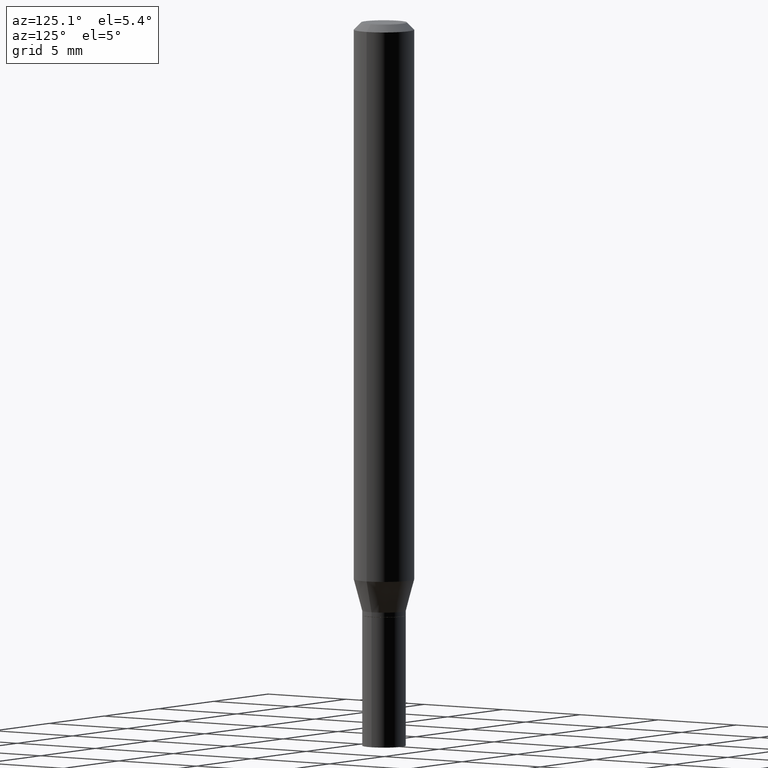
[diagram: clean part render]
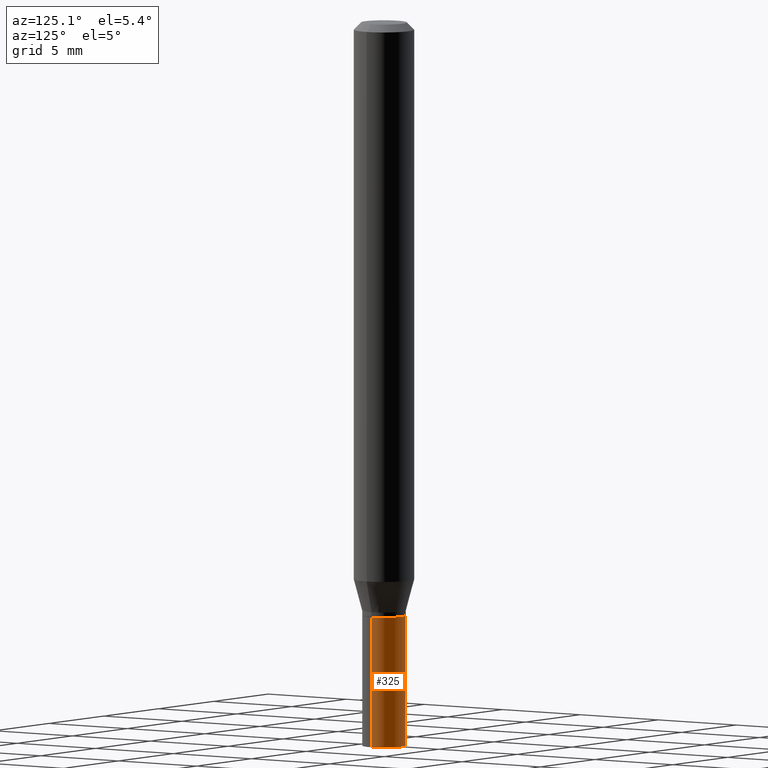
[diagram: same view with one face highlighted and labeled with its STEP entity id]
A machine part, auxiliary view. The second image highlights one B-rep face of the part: STEP entity #325.
In plain terms, the highlighted cylindrical surface (edge-blend (fillet) strip) has radius 1.143 mm, axis along (-0, 0, 1).
Its self-contained STEP definition (entity closure, byte-faithful):
#4 = DIRECTION ( 'NONE',  ( 1.000000000000000000, -6.982962677686269077E-15, 0.000000000000000000 ) ) ;
#5 = EDGE_CURVE ( 'NONE', #339, #103, #352, .T. ) ;
#25 = ORIENTED_EDGE ( 'NONE', *, *, #143, .T. ) ;
#27 = CARTESIAN_POINT ( 'NONE',  ( 0.04499999999999999833, -5.551455328760600652E-15, -1.500000000000000222 ) ) ;
#42 = CARTESIAN_POINT ( 'NONE',  ( -0.04499999999999999833, -4.446127796428848702E-15, -1.500000000000000222 ) ) ;
#84 = DIRECTION ( 'NONE',  ( -2.445468806185136877E-29, 3.491481338843145188E-15, 1.000000000000000000 ) ) ;
#87 = CARTESIAN_POINT ( 'NONE',  ( 0.04499999999999999833, -3.142333204958819823E-16, 2.194279549108170967E-30 ) ) ;
#92 = DIRECTION ( 'NONE',  ( 1.000000000000000000, -6.982962677686266711E-15, 4.876176775795935793E-29 ) ) ;
#103 = VERTEX_POINT ( 'NONE', #42 ) ;
#113 = CARTESIAN_POINT ( 'NONE',  ( 3.668203209277704895E-29, -5.237222008264718177E-15, -1.500000000000000222 ) ) ;
#136 = ORIENTED_EDGE ( 'NONE', *, *, #5, .T. ) ;
#143 = EDGE_CURVE ( 'NONE', #103, #245, #362, .T. ) ;
#181 = VECTOR ( 'NONE', #84, 39.37007874015748143 ) ;
#190 = CARTESIAN_POINT ( 'NONE',  ( 0.000000000000000000, 0.000000000000000000, 0.000000000000000000 ) ) ;
#207 = ORIENTED_EDGE ( 'NONE', *, *, #387, .F. ) ;
#208 = DIRECTION ( 'NONE',  ( 1.000000000000000000, -6.982962677686269077E-15, 0.000000000000000000 ) ) ;
#210 = CIRCLE ( 'NONE', #354, 0.04499999999999999833 ) ;
#232 = AXIS2_PLACEMENT_3D ( 'NONE', #113, #358, #4 ) ;
#233 = EDGE_CURVE ( 'NONE', #339, #266, #290, .T. ) ;
#245 = VERTEX_POINT ( 'NONE', #367 ) ;
#249 = VECTOR ( 'NONE', #335, 39.37007874015748143 ) ;
#256 = CARTESIAN_POINT ( 'NONE',  ( -0.04499999999999999833, 3.197442310920450718E-16, -2.213520790614707560E-30 ) ) ;
#258 = CARTESIAN_POINT ( 'NONE',  ( 0.04499999999999999833, -4.608755367272951648E-15, -1.230000000000000204 ) ) ;
#263 = FACE_OUTER_BOUND ( 'NONE', #408, .T. ) ;
#266 = VERTEX_POINT ( 'NONE', #258 ) ;
#290 = LINE ( 'NONE', #87, #249 ) ;
#325 = ADVANCED_FACE ( 'NONE', ( #263 ), #412, .T. ) ;
#335 = DIRECTION ( 'NONE',  ( -2.445468806185136877E-29, 3.491481338843145188E-15, 1.000000000000000000 ) ) ;
#339 = VERTEX_POINT ( 'NONE', #27 ) ;
#352 = CIRCLE ( 'NONE', #232, 0.04499999999999999833 ) ;
#354 = AXIS2_PLACEMENT_3D ( 'NONE', #380, #378, #208 ) ;
#358 = DIRECTION ( 'NONE',  ( -2.445468806185136597E-29, 3.491481338843145583E-15, 1.000000000000000000 ) ) ;
#362 = LINE ( 'NONE', #256, #181 ) ;
#367 = CARTESIAN_POINT ( 'NONE',  ( -0.04499999999999999833, -4.446127796428848702E-15, -1.230000000000000204 ) ) ;
#378 = DIRECTION ( 'NONE',  ( -2.445468806185136597E-29, 3.491481338843145583E-15, 1.000000000000000000 ) ) ;
#380 = CARTESIAN_POINT ( 'NONE',  ( 3.007926631607718216E-29, -4.294522046777069173E-15, -1.230000000000000204 ) ) ;
#381 = ORIENTED_EDGE ( 'NONE', *, *, #233, .F. ) ;
#387 = EDGE_CURVE ( 'NONE', #266, #245, #210, .T. ) ;
#408 = EDGE_LOOP ( 'NONE', ( #136, #25, #207, #381 ) ) ;
#412 = CYLINDRICAL_SURFACE ( 'NONE', #416, 0.04499999999999999833 ) ;
#415 = DIRECTION ( 'NONE',  ( -2.445468806185136597E-29, 3.491481338843145583E-15, 1.000000000000000000 ) ) ;
#416 = AXIS2_PLACEMENT_3D ( 'NONE', #190, #415, #92 ) ;